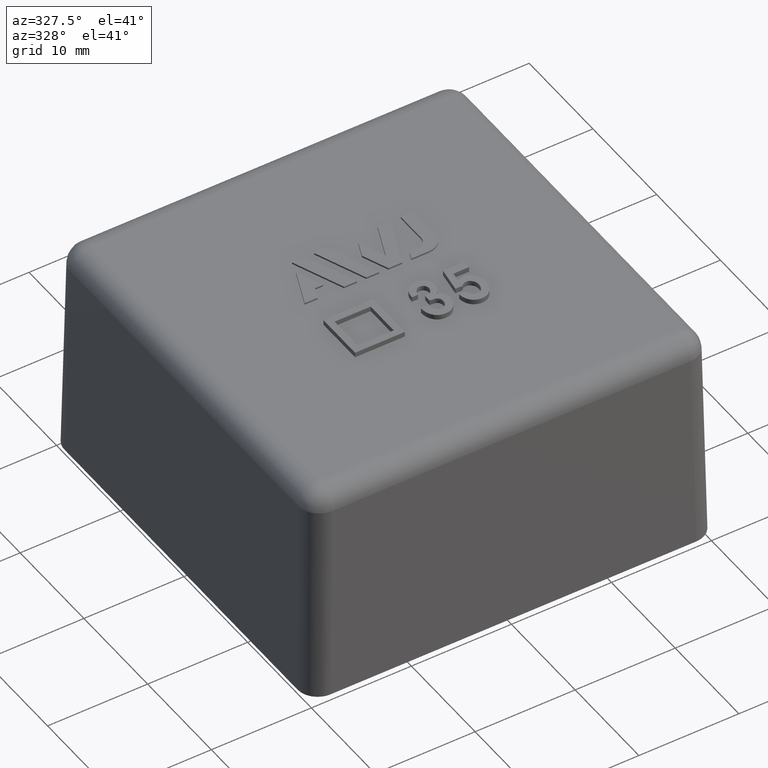
[diagram: clean part render]
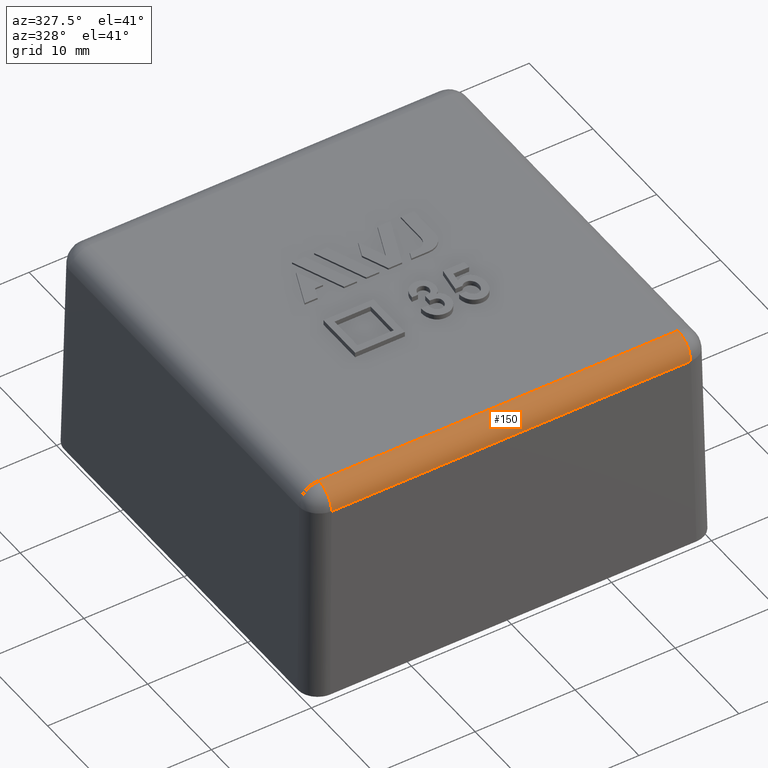
[diagram: same view with one face highlighted and labeled with its STEP entity id]
A machine part, auxiliary view. The second image highlights one B-rep face of the part: STEP entity #150.
In plain terms, the highlighted cylindrical surface (edge-blend (fillet) strip) has radius 2 mm, axis along (-1, 0, 0).
Its self-contained STEP definition (entity closure, byte-faithful):
#150 = ADVANCED_FACE( '', ( #322 ), #323, .T. );
#322 = FACE_OUTER_BOUND( '', #510, .T. );
#323 = CYLINDRICAL_SURFACE( '', #511, 2.00000000000000 );
#510 = EDGE_LOOP( '', ( #1176, #1177, #1178, #1179 ) );
#511 = AXIS2_PLACEMENT_3D( '', #1180, #1181, #1182 );
#1176 = ORIENTED_EDGE( '', *, *, #1473, .T. );
#1177 = ORIENTED_EDGE( '', *, *, #1394, .F. );
#1178 = ORIENTED_EDGE( '', *, *, #1470, .F. );
#1179 = ORIENTED_EDGE( '', *, *, #1278, .F. );
#1180 = CARTESIAN_POINT( '', ( -20.3000000000000, -17.9505940453478, 20.0000000000000 ) );
#1181 = DIRECTION( '', ( -1.00000000000000, 0.000000000000000, 0.000000000000000 ) );
#1182 = DIRECTION( '', ( 0.000000000000000, 0.000000000000000, -1.00000000000000 ) );
#1278 = EDGE_CURVE( '', #1496, #1497, #1498, .F. );
#1394 = EDGE_CURVE( '', #1701, #1703, #1704, .F. );
#1470 = EDGE_CURVE( '', #1497, #1701, #1816, .T. );
#1473 = EDGE_CURVE( '', #1496, #1703, #1819, .T. );
#1496 = VERTEX_POINT( '', #1888 );
#1497 = VERTEX_POINT( '', #1889 );
#1498 = LINE( '', #1890, #1891 );
#1701 = VERTEX_POINT( '', #2301 );
#1703 = VERTEX_POINT( '', #2304 );
#1704 = LINE( '', #2305, #2306 );
#1816 = CIRCLE( '', #2499, 2.00000000000000 );
#1819 = CIRCLE( '', #2502, 2.00000000000000 );
#1888 = CARTESIAN_POINT( '', ( -17.9505940453478, -17.9505940453478, 22.0000000000000 ) );
#1889 = CARTESIAN_POINT( '', ( 17.9505940453478, -17.9505940453478, 22.0000000000000 ) );
#1890 = CARTESIAN_POINT( '', ( 17.9162931812664, -17.9505940453478, 22.0000000000000 ) );
#1891 = VECTOR( '', #2514, 1000.00000000000 );
#2301 = CARTESIAN_POINT( '', ( 17.9505940453478, -19.9502894356606, 20.0349048128746 ) );
#2304 = CARTESIAN_POINT( '', ( -17.9505940453478, -19.9502894356606, 20.0349048128746 ) );
#2305 = CARTESIAN_POINT( '', ( -17.9162931812664, -19.9502894356606, 20.0349048128746 ) );
#2306 = VECTOR( '', #2620, 1000.00000000000 );
#2499 = AXIS2_PLACEMENT_3D( '', #2692, #2693, #2694 );
#2502 = AXIS2_PLACEMENT_3D( '', #2701, #2702, #2703 );
#2514 = DIRECTION( '', ( -1.00000000000000, 0.000000000000000, 0.000000000000000 ) );
#2620 = DIRECTION( '', ( 1.00000000000000, 0.000000000000000, 0.000000000000000 ) );
#2692 = CARTESIAN_POINT( '', ( 17.9505940453478, -17.9505940453478, 20.0000000000000 ) );
#2693 = DIRECTION( '', ( 1.00000000000000, 1.73498772301062E-015, 0.000000000000000 ) );
#2694 = DIRECTION( '', ( -1.73498772301062E-015, 1.00000000000000, 0.000000000000000 ) );
#2701 = CARTESIAN_POINT( '', ( -17.9505940453478, -17.9505940453478, 20.0000000000000 ) );
#2702 = DIRECTION( '', ( 1.00000000000000, 0.000000000000000, 0.000000000000000 ) );
#2703 = DIRECTION( '', ( 0.000000000000000, 0.000000000000000, -1.00000000000000 ) );